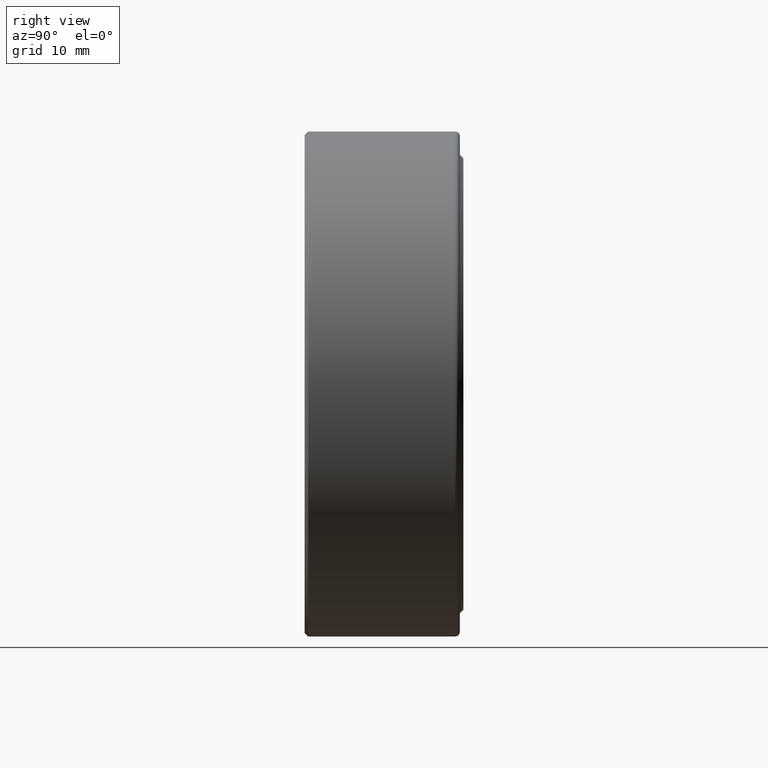
[diagram: clean part render]
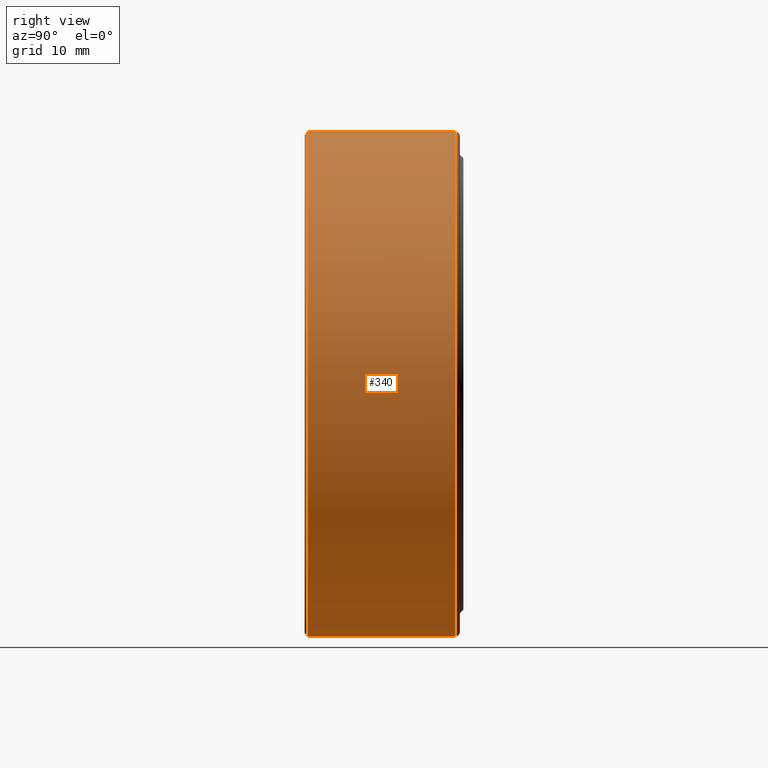
[diagram: same view with one face highlighted and labeled with its STEP entity id]
A machine part, right view. The second image highlights one B-rep face of the part: STEP entity #340.
In plain terms, the highlighted cylindrical surface (bore or boss wall) has radius 27.7812 mm, axis along (-0, 1, -0).
Its self-contained STEP definition (entity closure, byte-faithful):
#35 = VERTEX_POINT ( 'NONE', #238 ) ;
#49 = CARTESIAN_POINT ( 'NONE',  ( 0.0000000000000000000, 0.0000000000000000000, 0.0000000000000000000 ) ) ;
#112 = DIRECTION ( 'NONE',  ( -0.0000000000000000000, 1.000000000000000000, -0.0000000000000000000 ) ) ;
#117 = ORIENTED_EDGE ( 'NONE', *, *, #157, .T. ) ;
#122 = VERTEX_POINT ( 'NONE', #572 ) ;
#129 = EDGE_CURVE ( 'NONE', #122, #122, #369, .T. ) ;
#131 = DIRECTION ( 'NONE',  ( -0.0000000000000000000, 1.000000000000000000, -0.0000000000000000000 ) ) ;
#149 = CARTESIAN_POINT ( 'NONE',  ( 0.0000000000000000000, 0.6524999999999997500, 0.0000000000000000000 ) ) ;
#157 = EDGE_CURVE ( 'NONE', #35, #35, #276, .T. ) ;
#198 = DIRECTION ( 'NONE',  ( 0.0000000000000000000, 0.0000000000000000000, 1.000000000000000000 ) ) ;
#208 = CARTESIAN_POINT ( 'NONE',  ( 0.0000000000000000000, 0.01500000000000004500, 0.0000000000000000000 ) ) ;
#220 = ORIENTED_EDGE ( 'NONE', *, *, #129, .F. ) ;
#238 = CARTESIAN_POINT ( 'NONE',  ( 0.0000000000000000000, 0.01500000000000004500, 1.093750000000000000 ) ) ;
#267 = AXIS2_PLACEMENT_3D ( 'NONE', #208, #131, #426 ) ;
#276 = CIRCLE ( 'NONE', #267, 1.093750000000000000 ) ;
#285 = DIRECTION ( 'NONE',  ( 0.0000000000000000000, 0.0000000000000000000, 1.000000000000000000 ) ) ;
#340 = ADVANCED_FACE ( 'NONE', ( #474, #417 ), #352, .T. ) ;
#352 = CYLINDRICAL_SURFACE ( 'NONE', #373, 1.093750000000000000 ) ;
#369 = CIRCLE ( 'NONE', #556, 1.093750000000000000 ) ;
#373 = AXIS2_PLACEMENT_3D ( 'NONE', #49, #562, #285 ) ;
#400 = EDGE_LOOP ( 'NONE', ( #117 ) ) ;
#417 = FACE_OUTER_BOUND ( 'NONE', #400, .T. ) ;
#426 = DIRECTION ( 'NONE',  ( 0.0000000000000000000, 0.0000000000000000000, 1.000000000000000000 ) ) ;
#474 = FACE_OUTER_BOUND ( 'NONE', #604, .T. ) ;
#556 = AXIS2_PLACEMENT_3D ( 'NONE', #149, #112, #198 ) ;
#562 = DIRECTION ( 'NONE',  ( -0.0000000000000000000, 1.000000000000000000, -0.0000000000000000000 ) ) ;
#572 = CARTESIAN_POINT ( 'NONE',  ( 0.0000000000000000000, 0.6524999999999997500, 1.093750000000000000 ) ) ;
#604 = EDGE_LOOP ( 'NONE', ( #220 ) ) ;